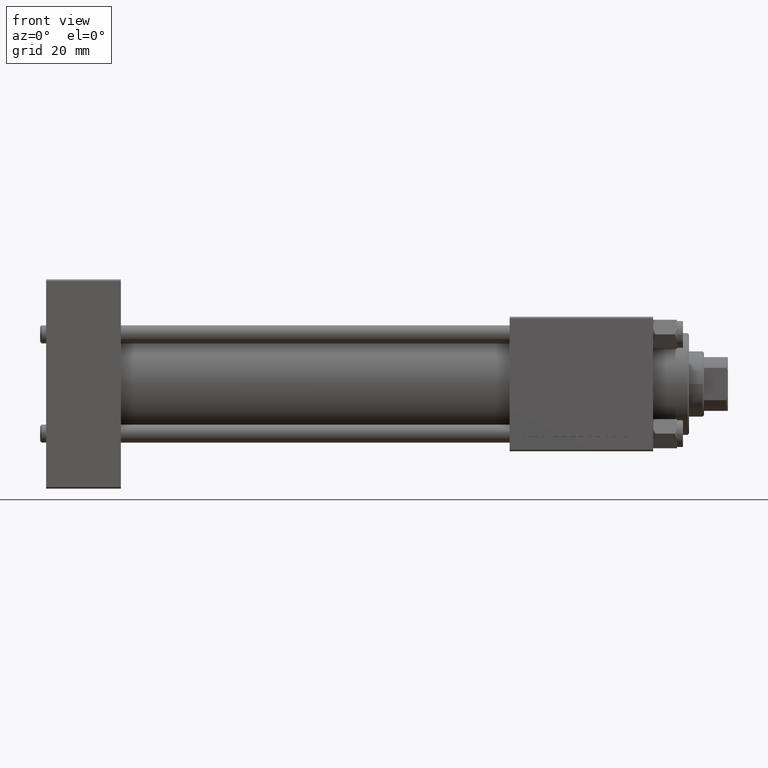
[diagram: clean part render]
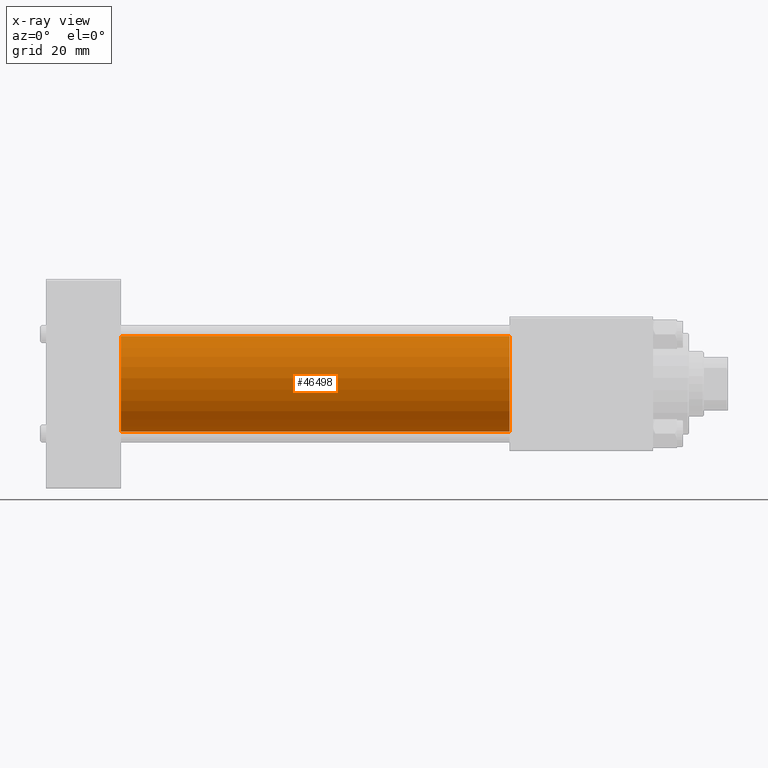
[diagram: x-ray — body ghosted, one internal face saturated and labeled with its STEP entity id]
A machine part, front view, then the same camera in x-ray: the body is ghosted and one INTERNAL B-rep face — a face not visible from any outside direction — is saturated and labeled: STEP entity #46498.
In plain terms, the highlighted cylindrical surface (partial cylindrical patch) has radius 16 mm, axis along (-1, -0, -0).
Its self-contained STEP definition (entity closure, byte-faithful):
#904 = DIRECTION ( 'NONE',  ( 0.000000000000000000, 0.000000000000000000, -1.000000000000000000 ) ) ;
#3671 = CYLINDRICAL_SURFACE ( 'NONE', #37149, 16.00000000000000000 ) ;
#5840 = VERTEX_POINT ( 'NONE', #42072 ) ;
#6502 = DIRECTION ( 'NONE',  ( 0.000000000000000000, 0.000000000000000000, 1.000000000000000000 ) ) ;
#8270 = ORIENTED_EDGE ( 'NONE', *, *, #28591, .T. ) ;
#9740 = CARTESIAN_POINT ( 'NONE',  ( 25.00000000000000000, -2.602085213965210642E-15, 0.000000000000000000 ) ) ;
#10290 = CARTESIAN_POINT ( 'NONE',  ( 155.0000000000000000, -2.602085213965210642E-15, 0.000000000000000000 ) ) ;
#10481 = VECTOR ( 'NONE', #39637, 1000.000000000000000 ) ;
#11595 = CARTESIAN_POINT ( 'NONE',  ( 155.0000000000000000, -6.426503353294456087E-16, -16.00000000000000000 ) ) ;
#12792 = CARTESIAN_POINT ( 'NONE',  ( 25.00000000000000000, -6.426503353294456087E-16, -16.00000000000000000 ) ) ;
#13696 = DIRECTION ( 'NONE',  ( 0.000000000000000000, 0.000000000000000000, -1.000000000000000000 ) ) ;
#14682 = EDGE_CURVE ( 'NONE', #40711, #14706, #18256, .T. ) ;
#14706 = VERTEX_POINT ( 'NONE', #12792 ) ;
#15952 = EDGE_CURVE ( 'NONE', #17149, #40711, #21834, .T. ) ;
#17149 = VERTEX_POINT ( 'NONE', #36560 ) ;
#17483 = CARTESIAN_POINT ( 'NONE',  ( 155.0000000000000000, -2.602085213965210642E-15, 0.000000000000000000 ) ) ;
#18256 = CIRCLE ( 'NONE', #40829, 16.00000000000000000 ) ;
#19357 = CIRCLE ( 'NONE', #49985, 16.00000000000000000 ) ;
#21834 = LINE ( 'NONE', #37241, #31997 ) ;
#23724 = ORIENTED_EDGE ( 'NONE', *, *, #14682, .F. ) ;
#24424 = DIRECTION ( 'NONE',  ( 1.000000000000000000, 0.000000000000000000, 0.000000000000000000 ) ) ;
#26217 = DIRECTION ( 'NONE',  ( -1.000000000000000000, -0.000000000000000000, -0.000000000000000000 ) ) ;
#28591 = EDGE_CURVE ( 'NONE', #17149, #5840, #19357, .T. ) ;
#31997 = VECTOR ( 'NONE', #33701, 1000.000000000000000 ) ;
#32306 = FACE_OUTER_BOUND ( 'NONE', #45524, .T. ) ;
#32404 = DIRECTION ( 'NONE',  ( 1.000000000000000000, 0.000000000000000000, 0.000000000000000000 ) ) ;
#33701 = DIRECTION ( 'NONE',  ( -1.000000000000000000, -0.000000000000000000, -0.000000000000000000 ) ) ;
#36560 = CARTESIAN_POINT ( 'NONE',  ( 155.0000000000000000, -2.602085213965210642E-15, 16.00000000000000000 ) ) ;
#37149 = AXIS2_PLACEMENT_3D ( 'NONE', #10290, #26217, #6502 ) ;
#37241 = CARTESIAN_POINT ( 'NONE',  ( 155.0000000000000000, -2.602085213965210642E-15, 16.00000000000000000 ) ) ;
#38805 = ORIENTED_EDGE ( 'NONE', *, *, #45079, .T. ) ;
#39637 = DIRECTION ( 'NONE',  ( -1.000000000000000000, -0.000000000000000000, -0.000000000000000000 ) ) ;
#40711 = VERTEX_POINT ( 'NONE', #48765 ) ;
#40829 = AXIS2_PLACEMENT_3D ( 'NONE', #9740, #24424, #904 ) ;
#42072 = CARTESIAN_POINT ( 'NONE',  ( 155.0000000000000000, -6.426503353294456087E-16, -16.00000000000000000 ) ) ;
#45079 = EDGE_CURVE ( 'NONE', #5840, #14706, #46685, .T. ) ;
#45524 = EDGE_LOOP ( 'NONE', ( #8270, #38805, #23724, #47092 ) ) ;
#46498 = ADVANCED_FACE ( 'NONE', ( #32306 ), #3671, .F. ) ;
#46685 = LINE ( 'NONE', #11595, #10481 ) ;
#47092 = ORIENTED_EDGE ( 'NONE', *, *, #15952, .F. ) ;
#48765 = CARTESIAN_POINT ( 'NONE',  ( 25.00000000000000000, -2.602085213965210642E-15, 16.00000000000000000 ) ) ;
#49985 = AXIS2_PLACEMENT_3D ( 'NONE', #17483, #32404, #13696 ) ;